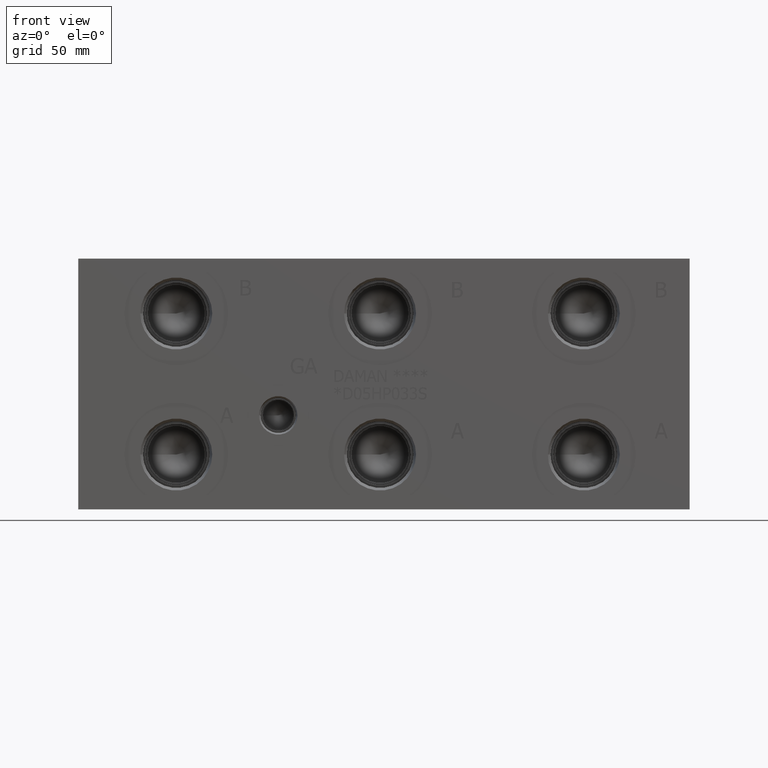
[diagram: clean part render]
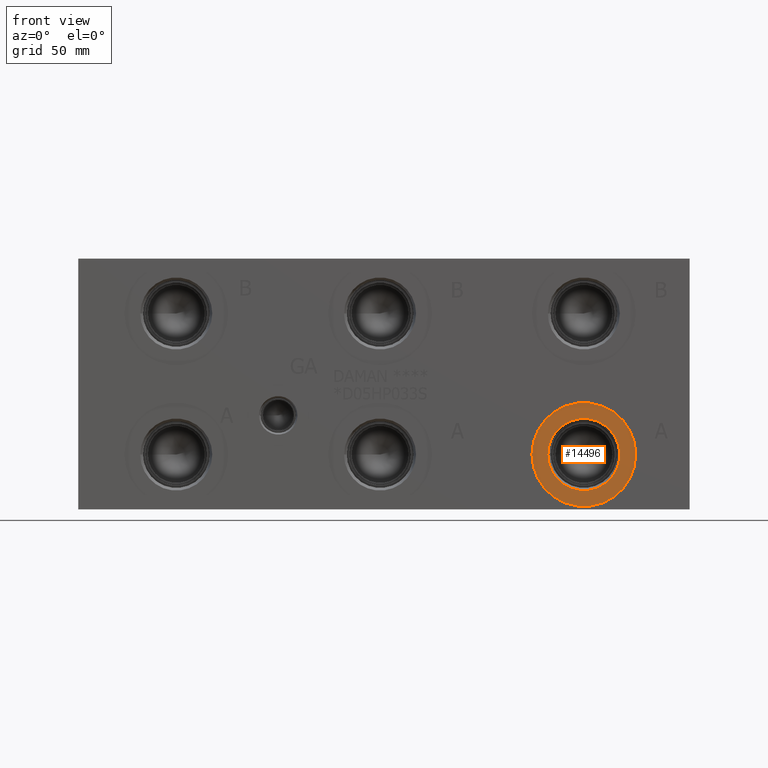
[diagram: same view with one face highlighted and labeled with its STEP entity id]
A machine part, front view. The second image highlights one B-rep face of the part: STEP entity #14496.
In plain terms, the highlighted planar face has unit normal (0, 1, 0).
Its self-contained STEP definition (entity closure, byte-faithful):
#405=CIRCLE('',#15115,21.0185);
#406=CIRCLE('',#15116,21.0185);
#407=CIRCLE('',#15118,14.5923);
#408=CIRCLE('',#15119,14.5923);
#1188=FACE_BOUND('',#2623,.T.);
#1795=FACE_OUTER_BOUND('',#2622,.T.);
#2622=EDGE_LOOP('',(#11931,#11932));
#2623=EDGE_LOOP('',(#11933,#11934));
#6515=VERTEX_POINT('',#24395);
#6516=VERTEX_POINT('',#24397);
#6517=VERTEX_POINT('',#24401);
#6518=VERTEX_POINT('',#24402);
#8421=EDGE_CURVE('',#6515,#6516,#405,.T.);
#8422=EDGE_CURVE('',#6516,#6515,#406,.T.);
#8423=EDGE_CURVE('',#6517,#6518,#407,.T.);
#8424=EDGE_CURVE('',#6518,#6517,#408,.T.);
#11931=ORIENTED_EDGE('',*,*,#8422,.F.);
#11932=ORIENTED_EDGE('',*,*,#8421,.F.);
#11933=ORIENTED_EDGE('',*,*,#8423,.T.);
#11934=ORIENTED_EDGE('',*,*,#8424,.T.);
#13381=PLANE('',#15117);
#14496=ADVANCED_FACE('',(#1795,#1188),#13381,.F.);
#15115=AXIS2_PLACEMENT_3D('',#24398,#17573,#17574);
#15116=AXIS2_PLACEMENT_3D('',#24399,#17575,#17576);
#15117=AXIS2_PLACEMENT_3D('',#24400,#17577,#17578);
#15118=AXIS2_PLACEMENT_3D('',#24403,#17579,#17580);
#15119=AXIS2_PLACEMENT_3D('',#24404,#17581,#17582);
#17573=DIRECTION('center_axis',(0.,1.,0.));
#17574=DIRECTION('ref_axis',(1.,0.,0.));
#17575=DIRECTION('center_axis',(0.,1.,0.));
#17576=DIRECTION('ref_axis',(1.,0.,0.));
#17577=DIRECTION('center_axis',(0.,1.,0.));
#17578=DIRECTION('ref_axis',(0.,0.,1.));
#17579=DIRECTION('center_axis',(0.,1.,0.));
#17580=DIRECTION('ref_axis',(1.,0.,0.));
#17581=DIRECTION('center_axis',(0.,1.,0.));
#17582=DIRECTION('ref_axis',(1.,0.,0.));
#24395=CARTESIAN_POINT('',(183.7563,0.7874,22.225));
#24397=CARTESIAN_POINT('',(225.7933,0.7874,22.225));
#24398=CARTESIAN_POINT('Origin',(204.7748,0.7874,22.225));
#24399=CARTESIAN_POINT('Origin',(204.7748,0.7874,22.225));
#24400=CARTESIAN_POINT('Origin',(219.3671,0.7874,22.225));
#24401=CARTESIAN_POINT('',(219.3671,0.7874,22.225));
#24402=CARTESIAN_POINT('',(190.1825,0.787400000000004,22.225));
#24403=CARTESIAN_POINT('Origin',(204.7748,0.7874,22.225));
#24404=CARTESIAN_POINT('Origin',(204.7748,0.7874,22.225));